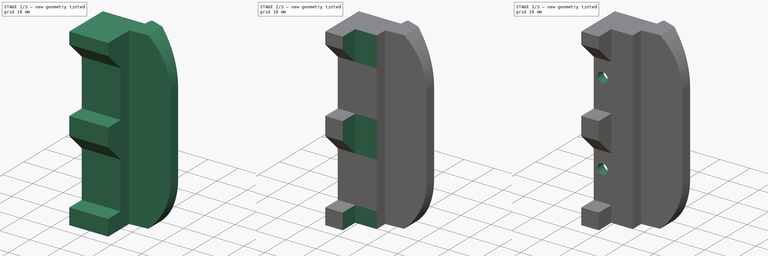
[diagram: build sequence overview — one tinted view per stage of 3, left to right]
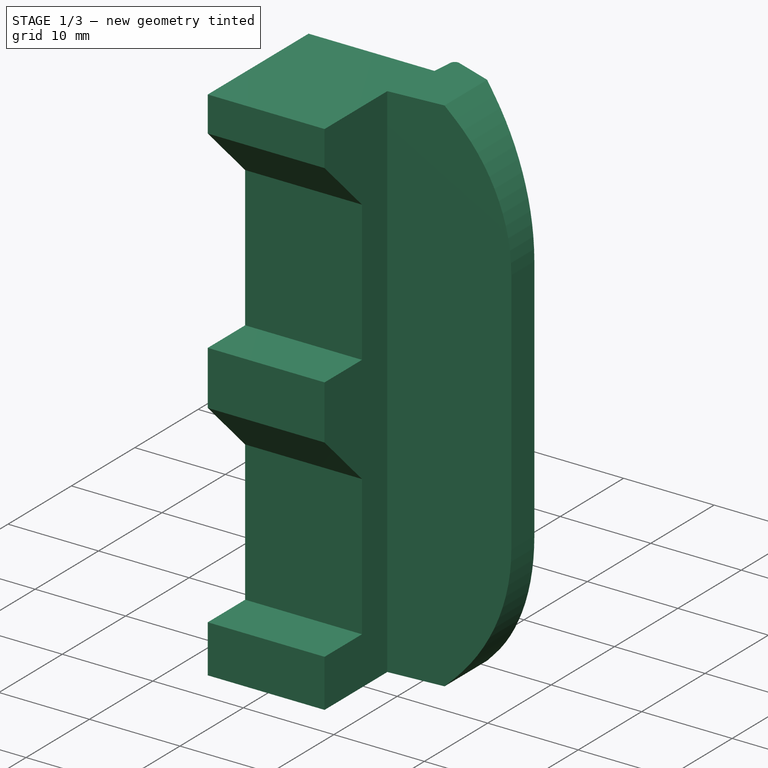
[diagram: stage 1 of 3 — iso view after this stage's code; geometry added in this stage tinted green]
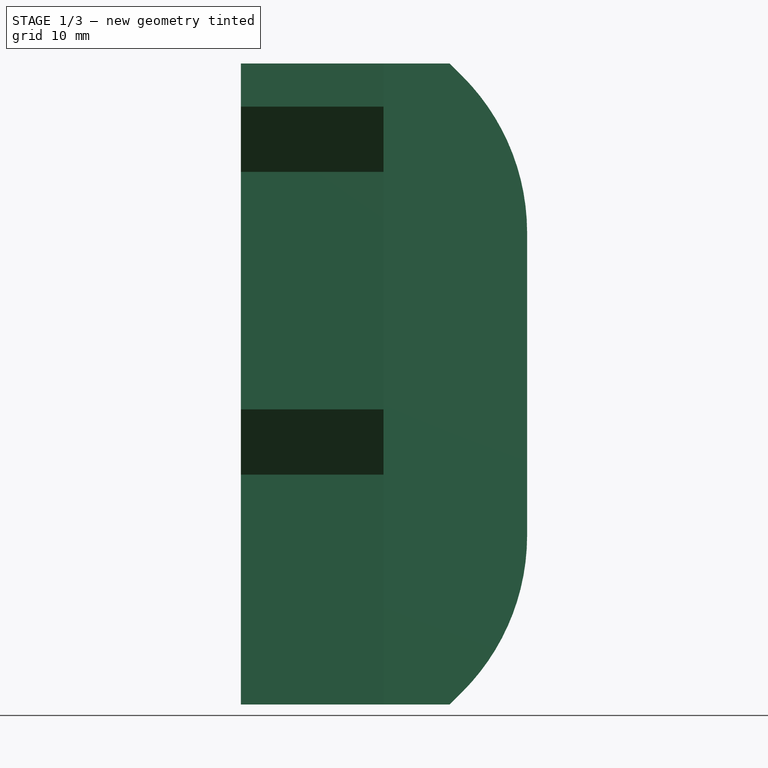
[diagram: stage 1 of 3 — front view after this stage's code; geometry added in this stage tinted green]
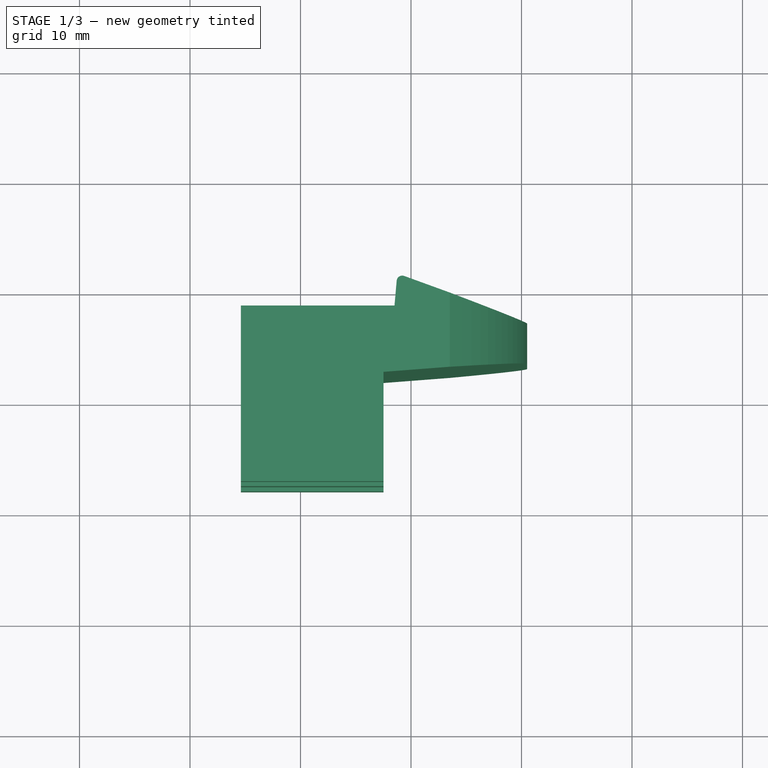
[diagram: stage 1 of 3 — top view after this stage's code; geometry added in this stage tinted green]
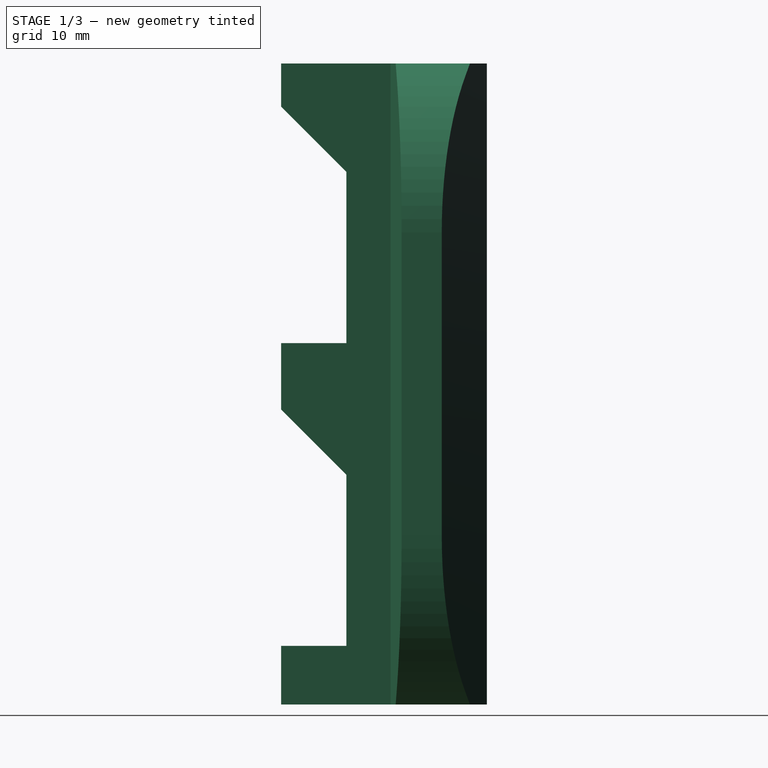
[diagram: stage 1 of 3 — right view after this stage's code; geometry added in this stage tinted green]
FCSTD DOCUMENT  (FreeCAD 1.0R39109 (Git))
Label: ExtendedLatch
License: All rights reserved
LicenseURL: https://en.wikipedia.org/wiki/All_rights_reserved
objects: Sketcher::SketchObject×4, PartDesign::Pocket×3, Part::Feature×1, Part::Refine×1, PartDesign::FeatureBase×1, PartDesign::Pad×1, PartDesign::Body×1
note: 25 computed .brp shape members not serialized (recipe doc carries the construction recipe); baked Part::Feature solids carry a one-line shape summary decoded from their .brp

FEATURE [Part::Feature] Latch001_solid  label="Latch001 (Solid)"
  shape: bbox 25.9 x 14.61 x 58 mm, 1382 faces (baked)
FEATURE [Part::Refine] Latch001_solid001  label="Latch001 (Solid)001"
  Source = -> Latch001_solid
FEATURE [PartDesign::FeatureBase] BaseFeature
  BaseFeature = -> Latch001_solid001
  Suppressed = false
FEATURE [Sketcher::SketchObject] Sketch
  ArcFitTolerance = 1e-06
  AttachmentSupport = -> [BaseFeature]
  ExternalGeometry = -> [BaseFeature]
  FullyConstrained = true
  MakeInternals = false
  MapMode = 5
  Placement = pos=(374.607,0,0) rot=(0.57735,-0.57735,-0.57735;2.0944rad)
  sketch-geometry (12):
    g0: LineSegment StartX=-32.1001 StartY=189 StartZ=0 EndX=-32.1001 EndY=185.1 EndZ=0
    g1: LineSegment StartX=-32.1001 StartY=185.1 StartZ=0 EndX=-38.0001 EndY=179.2 EndZ=0
    g2: LineSegment StartX=-38.0001 StartY=179.2 StartZ=0 EndX=-38.0001 EndY=163.7 EndZ=0
    g3: LineSegment StartX=-38.0001 StartY=163.7 StartZ=0 EndX=-32.1001 EndY=163.7 EndZ=0
    g4: LineSegment StartX=-32.1001 StartY=163.7 StartZ=0 EndX=-32.1001 EndY=157.7 EndZ=0
    g5: LineSegment StartX=-32.1001 StartY=157.7 StartZ=0 EndX=-38.0001 EndY=151.8 EndZ=0
    g6: LineSegment StartX=-38.0001 StartY=151.8 StartZ=0 EndX=-38.0001 EndY=136.3 EndZ=0
    g7: LineSegment StartX=-38.0001 StartY=136.3 StartZ=0 EndX=-32.1001 EndY=136.3 EndZ=0
    g8: LineSegment StartX=-32.1001 StartY=136.3 StartZ=0 EndX=-32.1001 EndY=131 EndZ=0
    g9: LineSegment StartX=-32.1001 StartY=131 StartZ=0 EndX=-42.1001 EndY=131 EndZ=0
    g10: LineSegment StartX=-42.1001 StartY=131 StartZ=0 EndX=-42.1001 EndY=189 EndZ=0
    g11: LineSegment StartX=-32.1001 StartY=189 StartZ=0 EndX=-42.1001 EndY=189 EndZ=0
  constraints (36):
    c: Coincident(g1,g0)
    c: Coincident(g2,g1)
    c: Vertical(g2)
    c: Horizontal(g3)
    c: Coincident(g4,g3)
    c: Coincident(g5,g4)
    c: Vertical(g0)
    c: Horizontal(g0,g-3)
    c: DistanceX(g-3,g0) = 4
    c: Coincident(g3,g2)
    c: Vertical(g0,g3)
    c: Vertical(g4)
    c: Horizontal(g-4,g3)
    c: Horizontal(g-6,g1)
    c: Horizontal(g-4,g4)
    c: Angle(g2,g1) = 2.35619
    c: Coincident(g6,g5)
    c: Vertical(g6)
    c: Angle(g6,g5) = 2.35619
    c: Horizontal(g-7,g5)
    c: Coincident(g7,g6)
    c: Horizontal(g7)
    c: Coincident(g8,g7)
    c: Vertical(g8)
    c: Horizontal(g9)
    c: Coincident(g10,g9)
    c: Vertical(g10)
    c: Horizontal(g-5,g6)
    c: Horizontal(g8,g-5)
    c: Coincident(g8,g9)
    c: Vertical(g4,g7)
    c: DistanceX(g9,g9) = 10
    c: Coincident(g11,g0)
    c: Coincident(g11,g10)
    c: Horizontal(g11)
    c: Horizontal(g-3,g0)
FEATURE [PartDesign::Pad] Pad
  BaseFeature = -> BaseFeature
  Direction = (-1,0,0)
  Length = 12.9
  Length2 = 10
  Profile = -> Sketch
  ReferenceAxis = -> Sketch [N_Axis]
  Refine = true
  Reversed = true
  Suppressed = false
  Type = 0
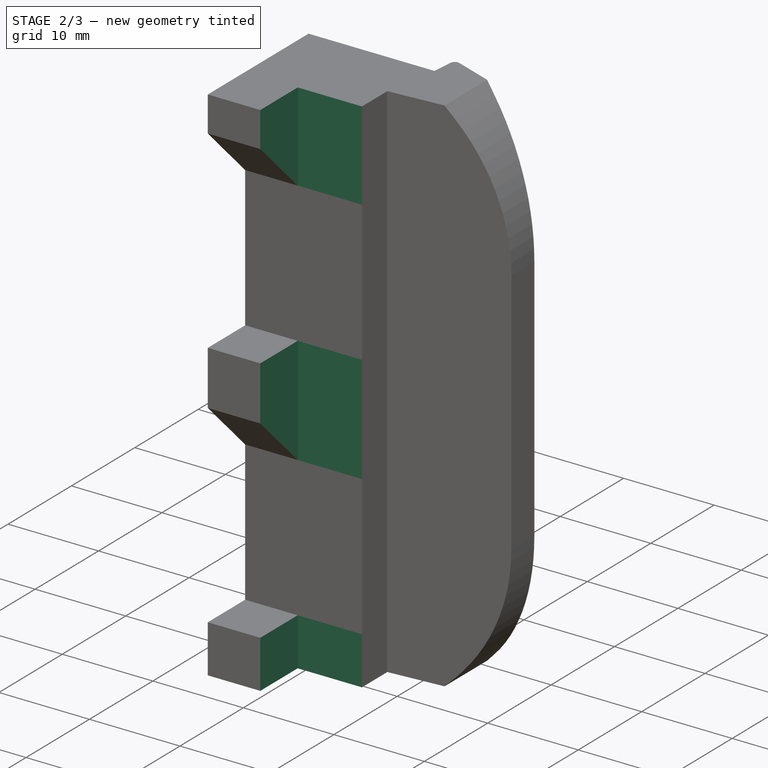
[diagram: stage 2 of 3 — iso view after this stage's code; geometry added in this stage tinted green]
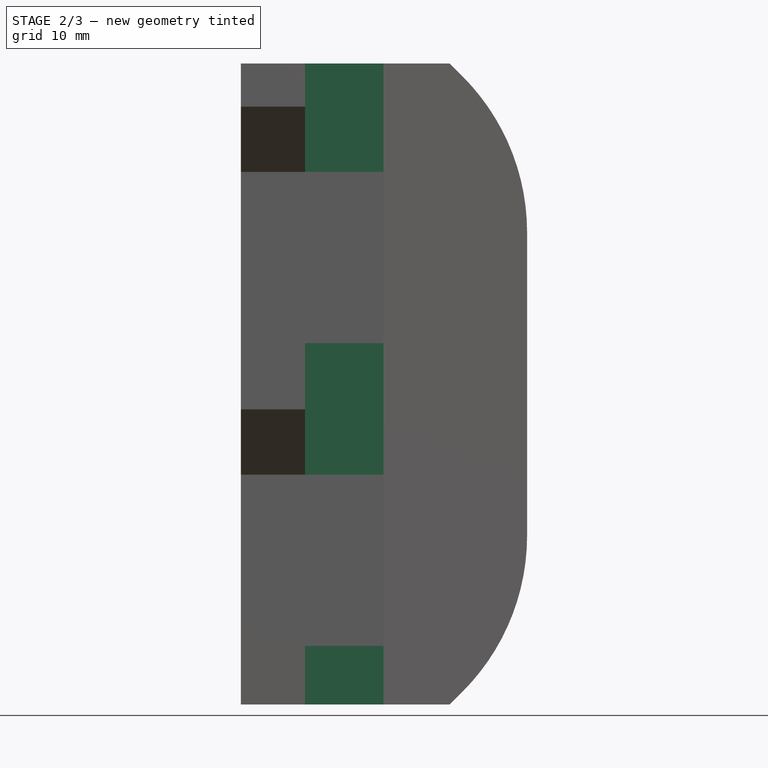
[diagram: stage 2 of 3 — front view after this stage's code; geometry added in this stage tinted green]
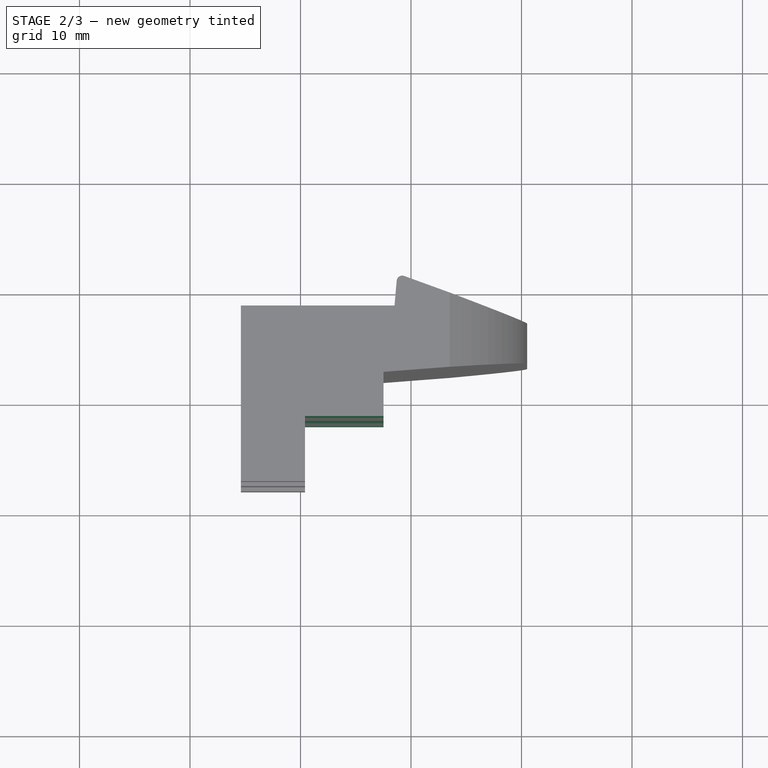
[diagram: stage 2 of 3 — top view after this stage's code; geometry added in this stage tinted green]
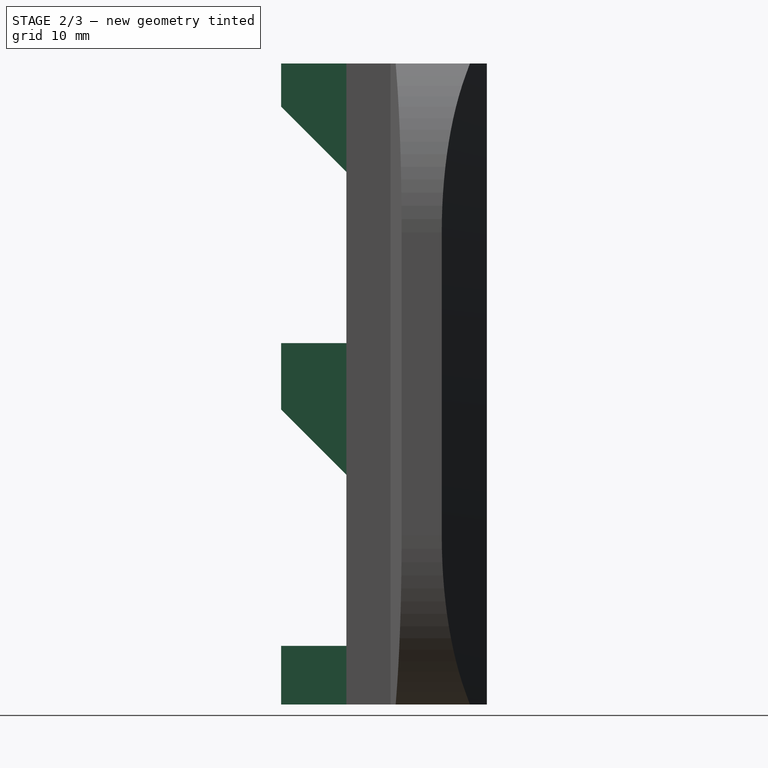
[diagram: stage 2 of 3 — right view after this stage's code; geometry added in this stage tinted green]
FEATURE [Sketcher::SketchObject] Sketch001
  ArcFitTolerance = 1e-06
  AttachmentSupport = -> [Pad]
  ExternalGeometry = -> [Pad]
  FullyConstrained = true
  MakeInternals = false
  MapMode = 5
  Placement = pos=(0,0,189) rot=(0,0,1;0rad)
  sketch-geometry (4):
    g0: LineSegment StartX=387.507 StartY=32.1001 StartZ=0 EndX=387.507 EndY=38.0001 EndZ=0
    g1: LineSegment StartX=387.507 StartY=38.0001 StartZ=0 EndX=380.407 EndY=38.0001 EndZ=0
    g2: LineSegment StartX=380.407 StartY=38.0001 StartZ=0 EndX=380.407 EndY=32.1001 EndZ=0
    g3: LineSegment StartX=380.407 StartY=32.1001 StartZ=0 EndX=387.507 EndY=32.1001 EndZ=0
  constraints (11):
    c: Coincident(g0,g1)
    c: Coincident(g1,g2)
    c: Coincident(g2,g3)
    c: Coincident(g3,g0)
    c: Vertical(g0)
    c: Vertical(g2)
    c: Horizontal(g1)
    c: Horizontal(g3)
    c: Coincident(g0,g-3)
    c: DistanceX(g3,g3) = 7.1
    c: Distance(g0,g0) = 5.9
FEATURE [PartDesign::Pocket] Pocket
  BaseFeature = -> Pad
  Direction = (0,0,-1)
  Length = 5
  Length2 = 5
  Profile = -> Sketch001
  ReferenceAxis = -> Sketch001 [N_Axis]
  Refine = true
  Suppressed = false
  Type = 1
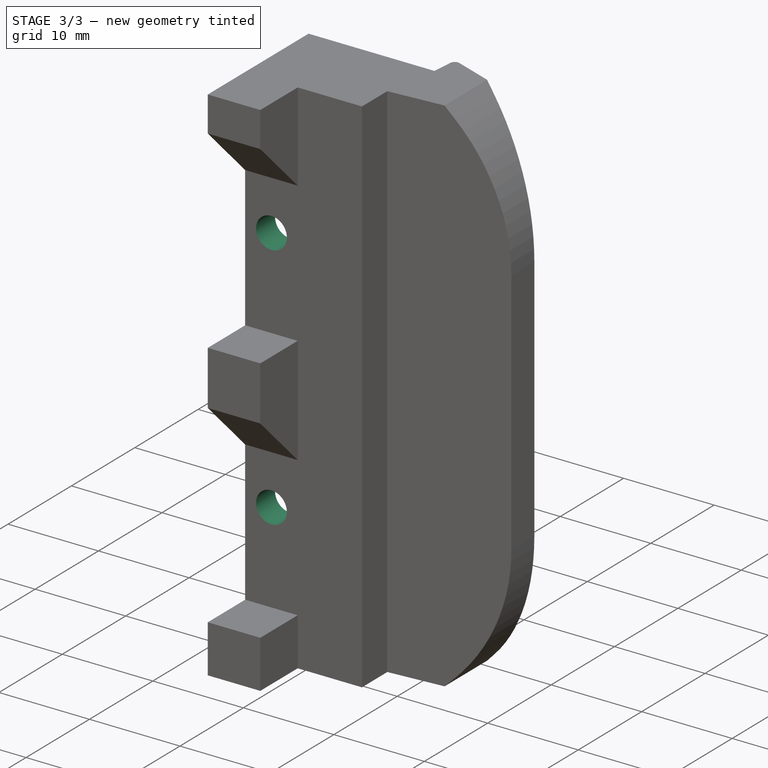
[diagram: stage 3 of 3 — iso view after this stage's code; geometry added in this stage tinted green]
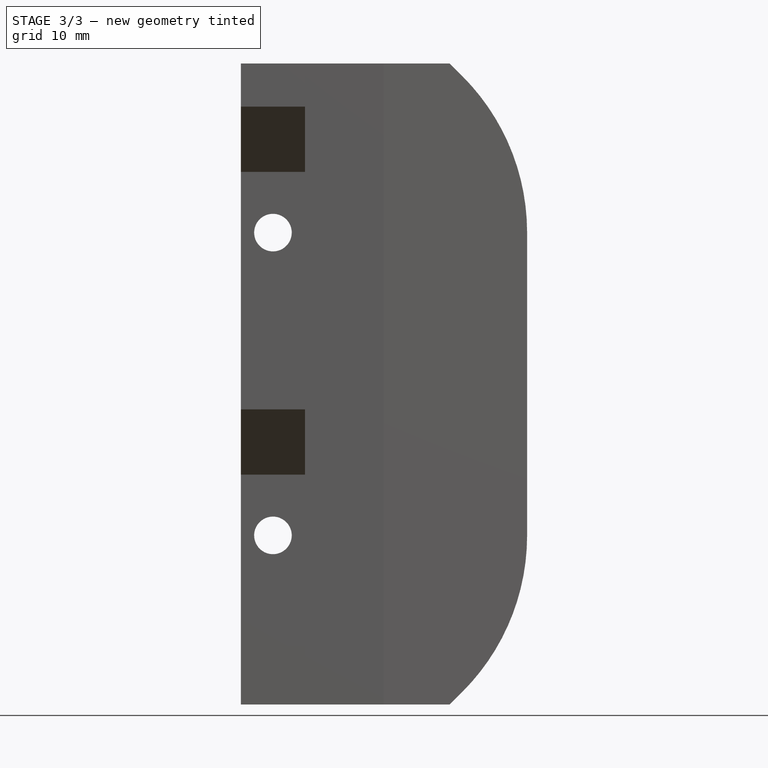
[diagram: stage 3 of 3 — front view after this stage's code; geometry added in this stage tinted green]
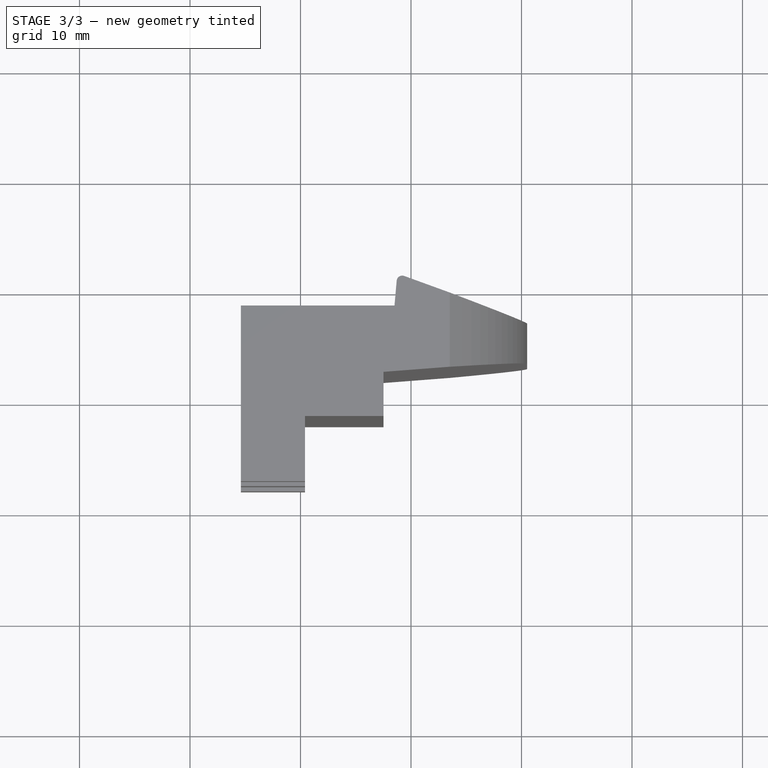
[diagram: stage 3 of 3 — top view after this stage's code; geometry added in this stage tinted green]
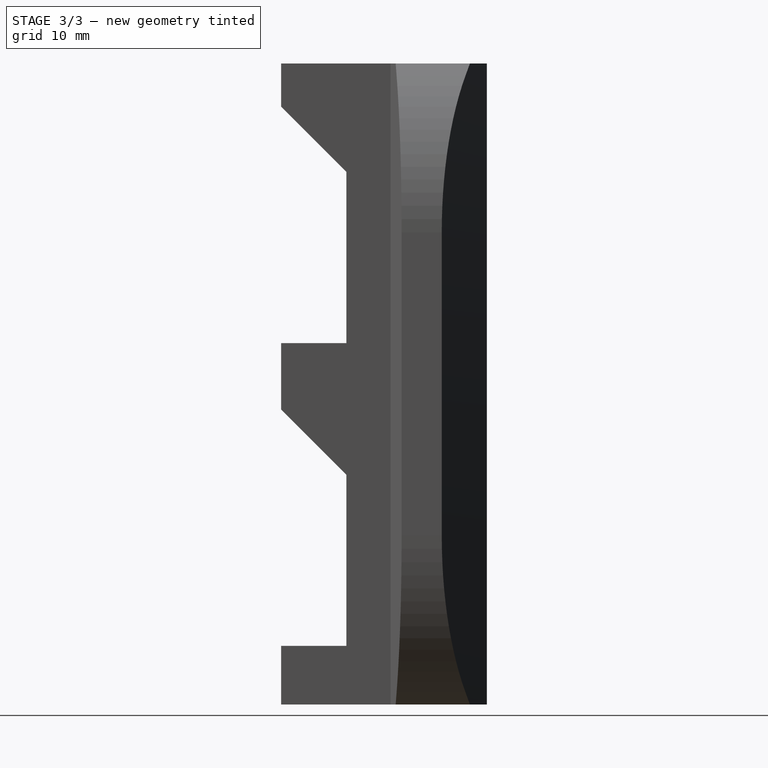
[diagram: stage 3 of 3 — right view after this stage's code; geometry added in this stage tinted green]
FEATURE [Sketcher::SketchObject] Sketch002
  ArcFitTolerance = 1e-06
  AttachmentSupport = -> [Pocket]
  ExternalGeometry = -> [Pocket]
  FullyConstrained = true
  MakeInternals = false
  MapMode = 5
  Placement = pos=(0,38.0001,0) rot=(1,0,0;1.5708rad)
  sketch-geometry (2):
    g0: Circle CenterX=377.507 CenterY=173.7 CenterZ=0 NormalX=0 NormalY=0 NormalZ=1 AngleXU=0 Radius=1.7
    g1: Circle CenterX=377.507 CenterY=146.3 CenterZ=0 NormalX=0 NormalY=0 NormalZ=1 AngleXU=0 Radius=1.7
  constraints (6):
    c: Vertical(g1,g0)
    c: Diameter(g1) = 3.4
    c: Equal(g1,g0)
    c: DistanceY(g-3,g1) = 15.3
    c: DistanceY(g1,g0) = 27.4
    c: DistanceX(g-3,g1) = 2.9
FEATURE [PartDesign::Pocket] Pocket001
  BaseFeature = -> Pocket
  Direction = (0,1,-2e-16)
  Length = 4.1
  Length2 = 5
  Profile = -> Sketch002
  ReferenceAxis = -> Sketch002 [N_Axis]
  Refine = true
  Suppressed = false
  Type = 0
FEATURE [Sketcher::SketchObject] Sketch003
  ArcFitTolerance = 1e-06
  AttachmentSupport = -> [Pocket001]
  ExternalGeometry = -> [Pocket001]
  FullyConstrained = true
  MakeInternals = false
  MapMode = 5
  Placement = pos=(0,45.0001,0) rot=(0,0.707107,0.707107;3.14159rad)
  sketch-geometry (8):
    g0: ArcOfCircle CenterX=-377.507 CenterY=173.7 CenterZ=0 NormalX=0 NormalY=0 NormalZ=1 AngleXU=0 Radius=3.2398 StartAngle=1.40528 EndAngle=4.8779
    g1: ArcOfCircle CenterX=-376.638 CenterY=178.899 CenterZ=0 NormalX=0 NormalY=0 NormalZ=1 AngleXU=0 Radius=2.03164 StartAngle=4.54687 EndAngle=6.26984
    g2: ArcOfCircle CenterX=-376.638 CenterY=168.501 CenterZ=0 NormalX=0 NormalY=0 NormalZ=1 AngleXU=0 Radius=2.03164 StartAngle=0.0133521 EndAngle=1.73631
    g3: LineSegment StartX=-374.607 StartY=178.872 StartZ=0 EndX=-374.607 EndY=168.528 EndZ=0
    g4: ArcOfCircle CenterX=-377.507 CenterY=146.3 CenterZ=0 NormalX=0 NormalY=0 NormalZ=1 AngleXU=0 Radius=3.23981 StartAngle=1.40528 EndAngle=4.87791
    g5: ArcOfCircle CenterX=-376.638 CenterY=141.101 CenterZ=0 NormalX=0 NormalY=0 NormalZ=1 AngleXU=0 Radius=2.03163 StartAngle=0.0133416 EndAngle=1.73631
    g6: ArcOfCircle CenterX=-376.638 CenterY=151.499 CenterZ=0 NormalX=0 NormalY=0 NormalZ=1 AngleXU=0 Radius=2.03163 StartAngle=4.54687 EndAngle=6.26984
    g7: LineSegment StartX=-374.607 StartY=151.472 StartZ=0 EndX=-374.607 EndY=141.128 EndZ=0
  constraints (22):
    c: Coincident(g1,g-3)
    c: Coincident(g2,g-4)
    c: Coincident(g3,g1)
    c: Coincident(g3,g2)
    c: Tangent(g2,g0) = 1.5708
    c: Tangent(g0,g1) = 1.5708
    c: Equal(g2,g1)
    c: Tangent(g-7,g0)
    c: Tangent(g-6,g0)
    c: Tangent(g-5,g0)
    c: Tangent(g1,g-8)
    c: Tangent(g4,g5) = 1.5708
    c: Coincident(g5,g-10)
    c: Tangent(g4,g6) = 1.5708
    c: Coincident(g6,g-9)
    c: Coincident(g7,g6)
    c: Coincident(g7,g5)
    c: Tangent(g4,g-12)
    c: Tangent(g-11,g4)
    c: Tangent(g-13,g4)
    c: Equal(g6,g5)
    c: Tangent(g6,g-14)
FEATURE [PartDesign::Pocket] Pocket002
  BaseFeature = -> Pocket001
  Direction = (0,-1,2e-16)
  Length = 4
  Length2 = 5
  Profile = -> Sketch003
  ReferenceAxis = -> Sketch003 [N_Axis]
  Refine = true
  Suppressed = false
  Type = 0
FEATURE [PartDesign::Body] Body
  AllowCompound = false
  BaseFeature = -> Latch001_solid001
  Group = -> [BaseFeature,Sketch,Pad,Sketch001,Pocket,Sketch002,Pocket001,Sketch003,Pocket002]
  Origin = -> Origin
  Tip = -> Pocket002
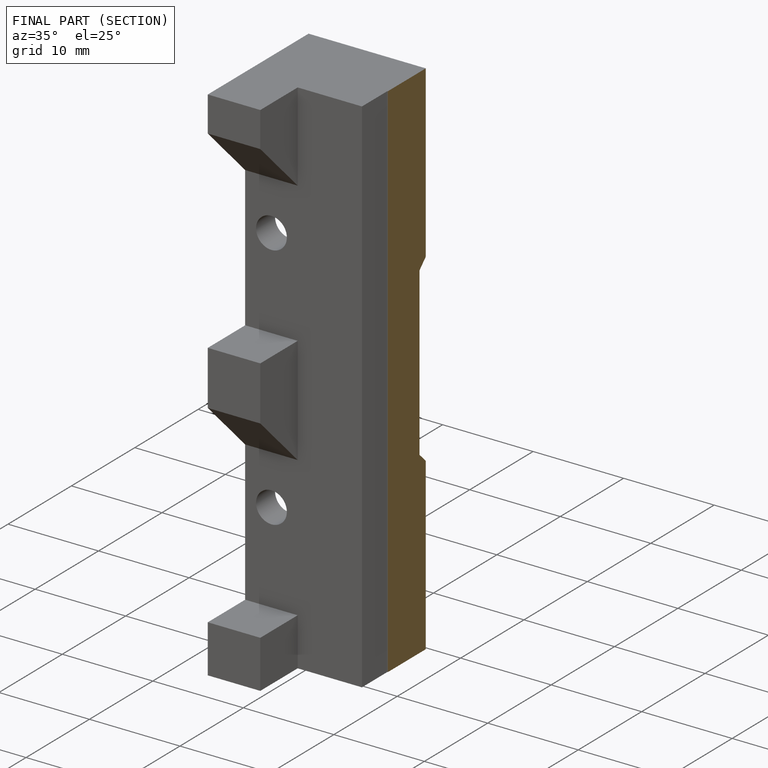
[diagram: finished part — half-section view (interior)]
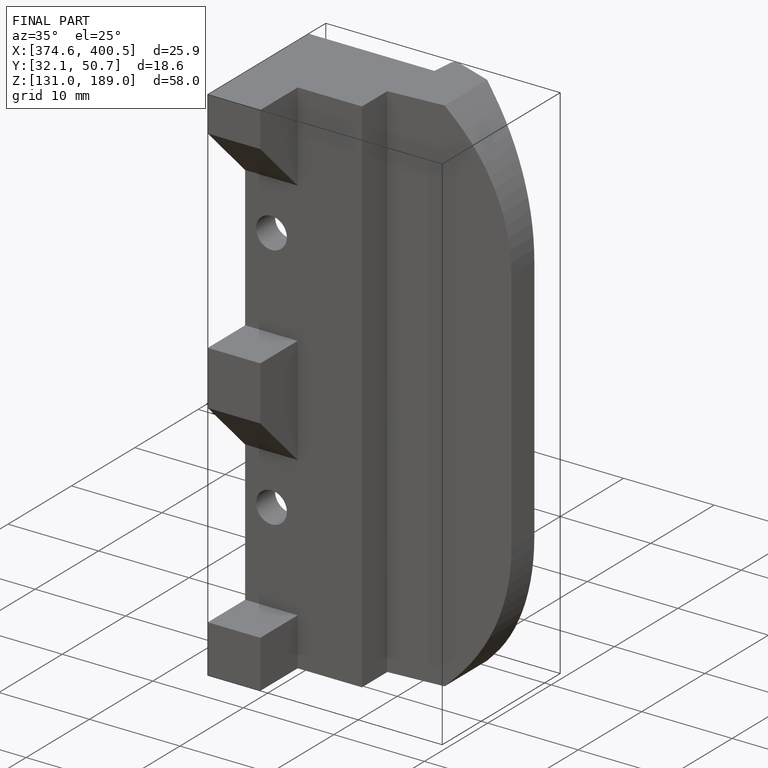
[diagram: finished part — iso view with bounding-box wireframe]
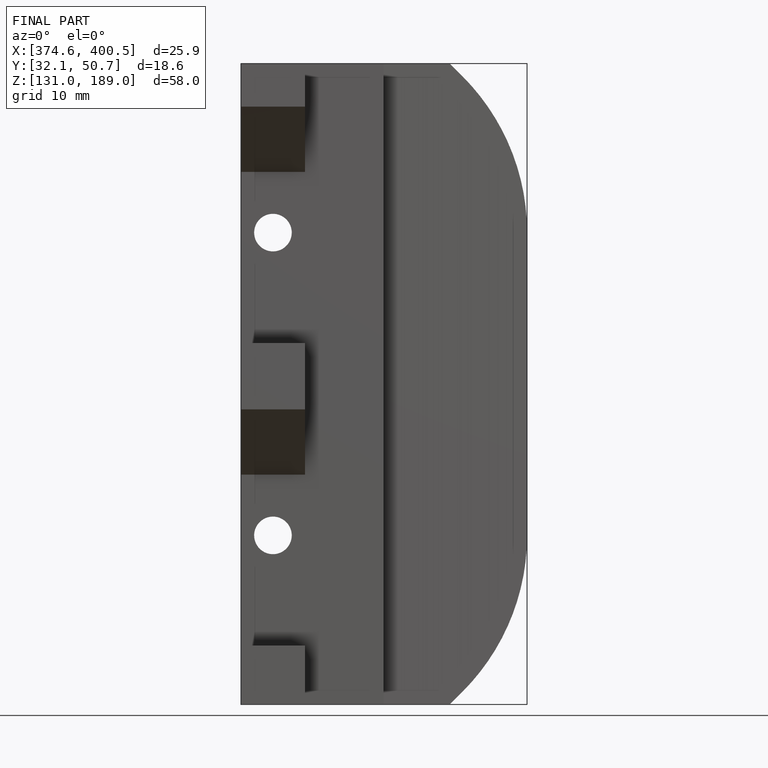
[diagram: finished part — front view with bounding-box wireframe]
